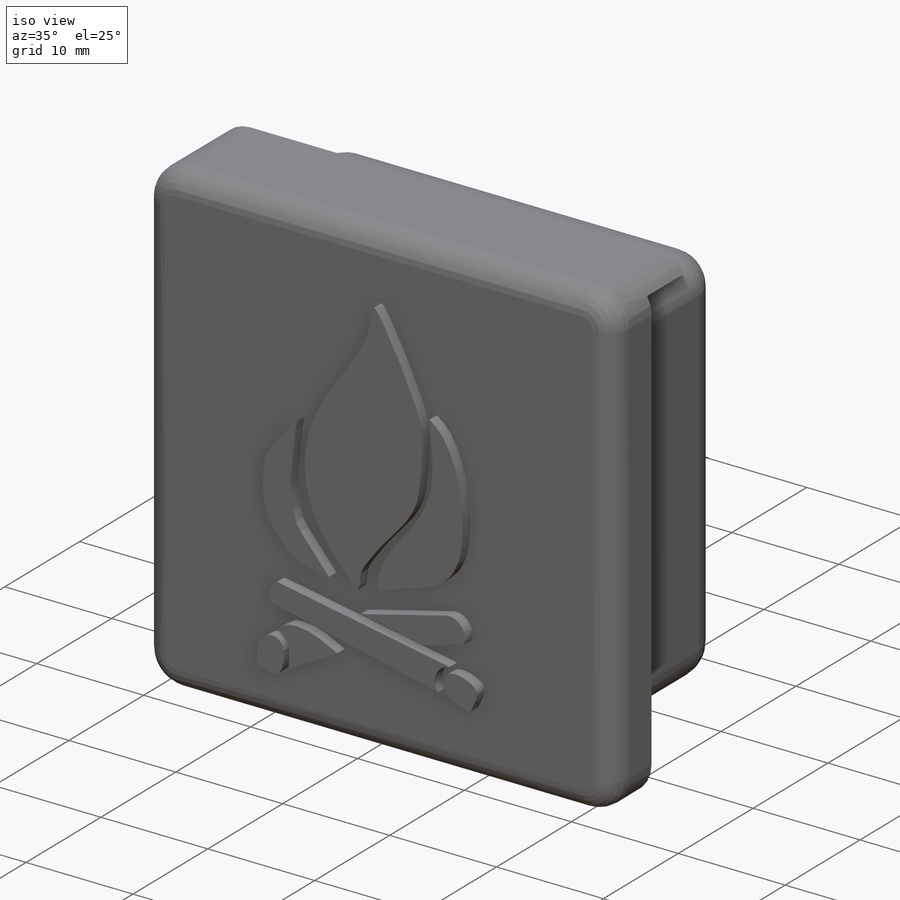
[diagram: iso view]
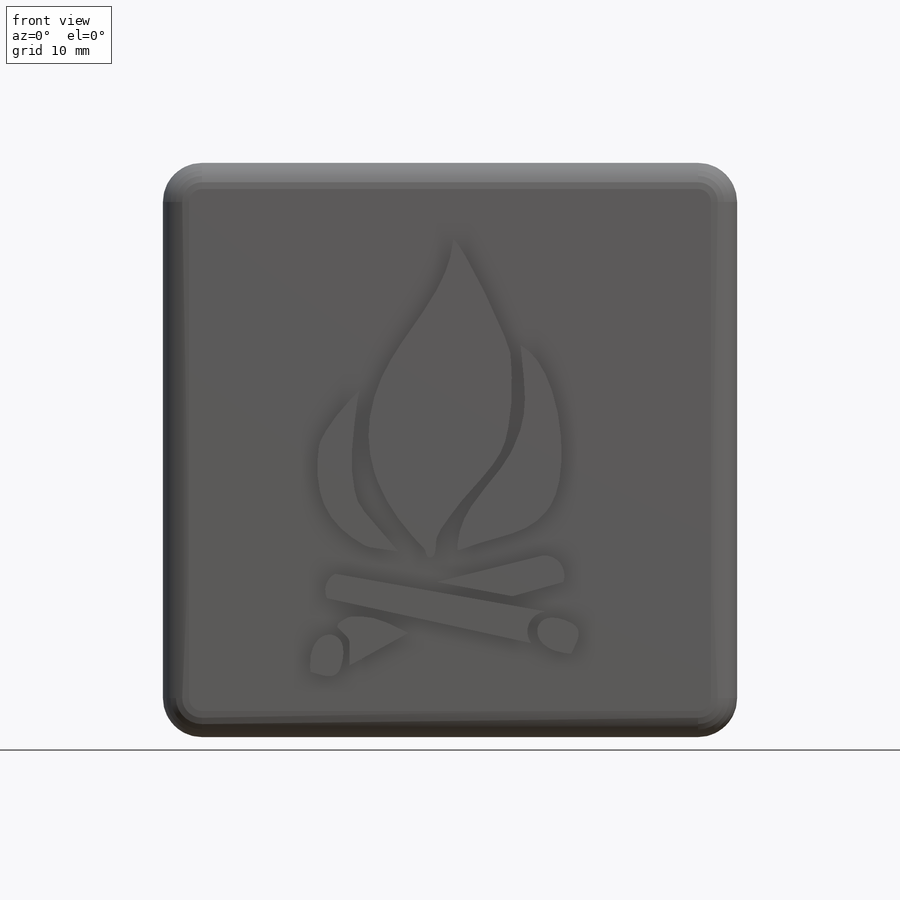
[diagram: front view]
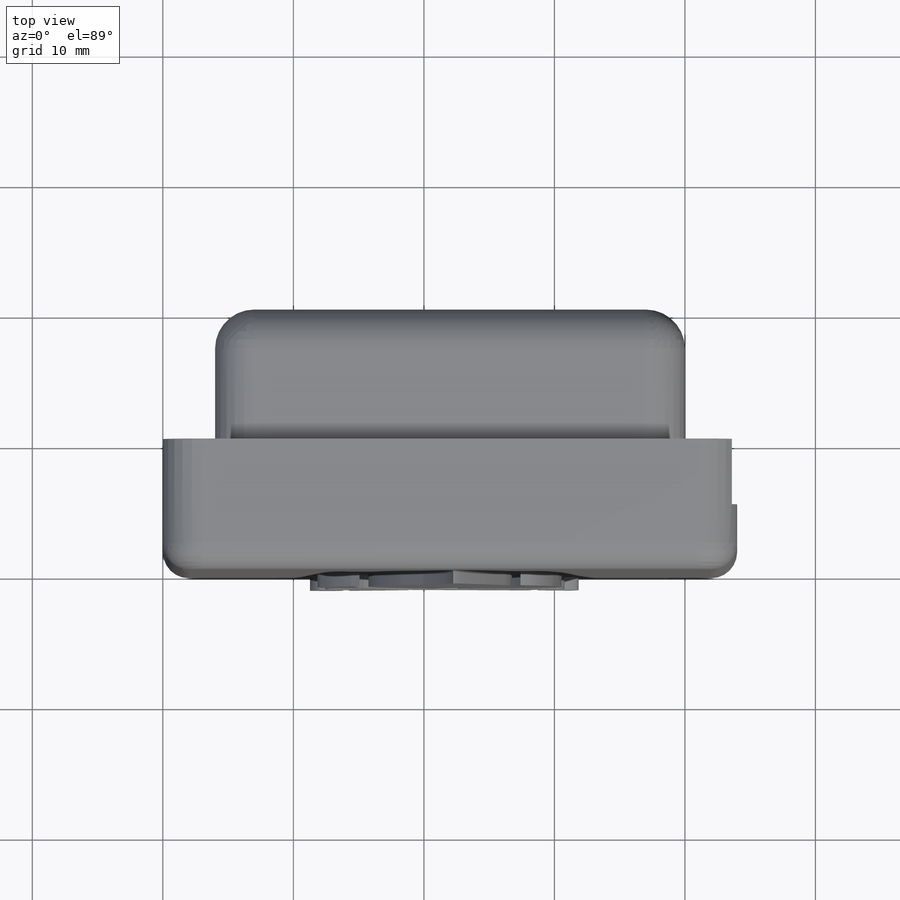
[diagram: top view]
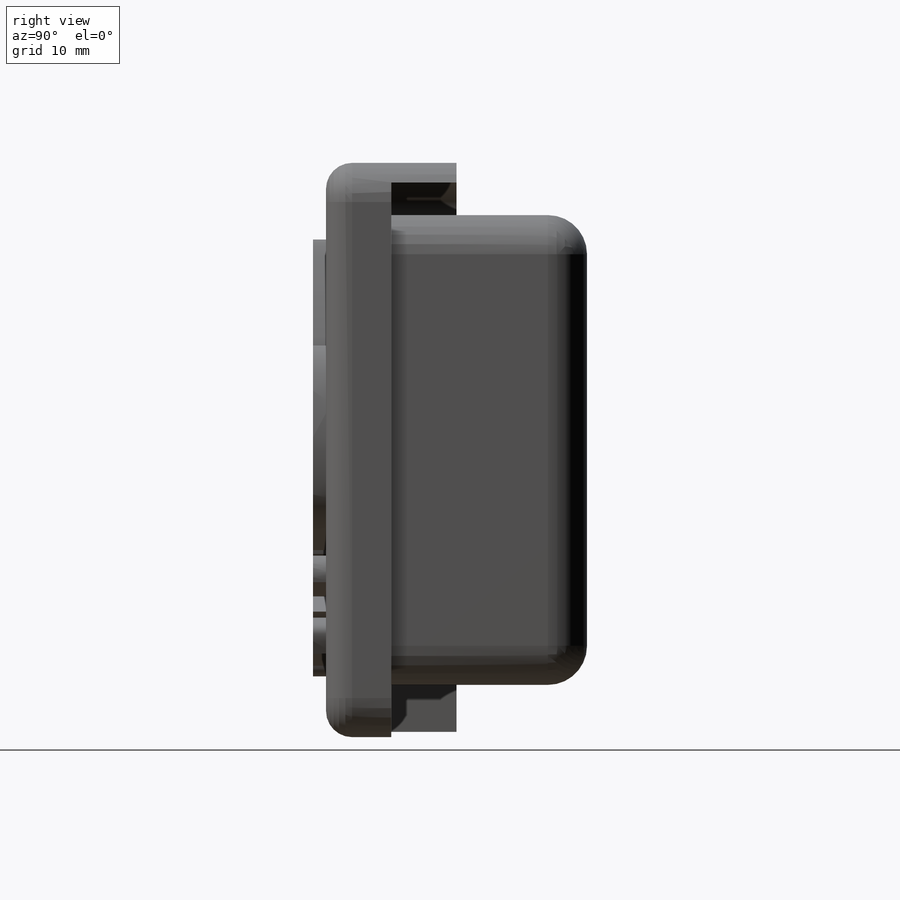
[diagram: right view]
SOLIDWORKS PART (.sldprt)
format: sldprt  version: not decoded by parser v0  size: 323,584 bytes
history: native  units: mm
features: sketch x4, plane x3, extrude x3, fillet x2, material x1, cut_extrude x1 (+9 scaffold rows collapsed)
feature tree (23):
  scaffold x9  (default folders/planes/origin — collapsed)
  material  "Matériau <non spécifié>"
  plane  "Plan de face"
  plane  "Plan de dessus"
  plane  "Plan de droite"
  sketch  "Esquisse2"  dims[c1.D1=44.0mm c1.D2=44.0mm c2.D1=44.0mm]
  extrude  "Boss.-Extru.1"  Depth=10mm
  sketch  "Esquisse3"  dims[c1.D1=~34.869684mm c1.D2=~33.294116mm c2.D1=36.0mm c2.D2=36.0mm c2.D3=4.0mm c2.D4=4.0mm]
  extrude  "Boss.-Extru.2"  Depth=10mm
  sketch  "Esquisse4"  dims[D1=1.5mm D2=2.5mm]
  cut_extrude  "Enlèv. mat.-Extru.1"  Depth=5mm
  fillet  "Congé1"  Radius=3mm
  fillet  "Congé2"  Radius=2mm
  sketch  "Esquisse7"  dims[D1=~0.805921mm]
  extrude  "Boss.-Extru.4"  Depth=1mm
decode coverage: 10 of 10 modeling features carry decoded parameters
note: ~ marks probable driven/reference dimensions
note: suppression state not decoded; provenance and decode notes live in map.json
